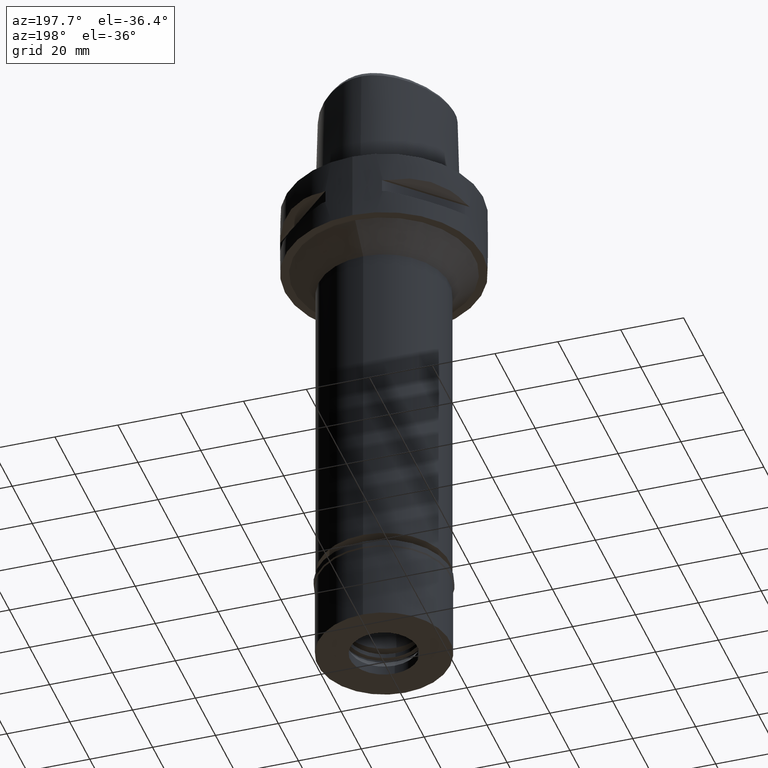
[diagram: clean part render]
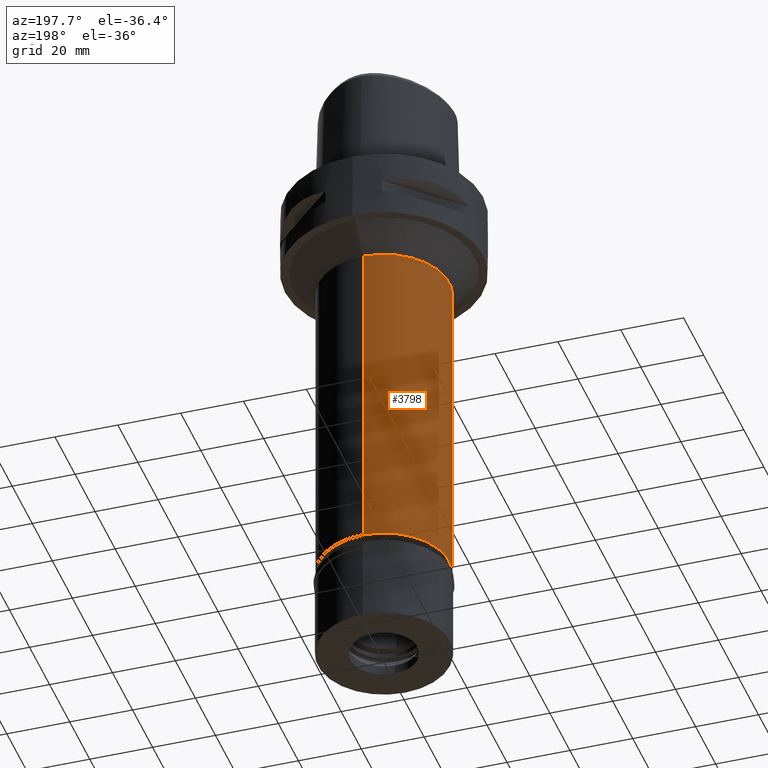
[diagram: same view with one face highlighted and labeled with its STEP entity id]
A machine part, auxiliary view. The second image highlights one B-rep face of the part: STEP entity #3798.
In plain terms, the highlighted cylindrical surface (partial cylindrical patch) has radius 20.8 mm, axis along (0, 0, -1).
Its self-contained STEP definition (entity closure, byte-faithful):
#33 = DIRECTION ( 'NONE',  ( 0.0000000000000000000, -1.000000000000000000, 0.0000000000000000000 ) ) ;
#204 = CARTESIAN_POINT ( 'NONE',  ( 0.0000000000000000000, -20.80000000000000071, -30.00000000000000000 ) ) ;
#286 = DIRECTION ( 'NONE',  ( 0.0000000000000000000, 0.0000000000000000000, -1.000000000000000000 ) ) ;
#317 = LINE ( 'NONE', #703, #1358 ) ;
#340 = ORIENTED_EDGE ( 'NONE', *, *, #1202, .F. ) ;
#434 = CARTESIAN_POINT ( 'NONE',  ( 0.0000000000000000000, 20.80000000000000071, -134.9000000000000057 ) ) ;
#489 = DIRECTION ( 'NONE',  ( 0.0000000000000000000, 0.0000000000000000000, 1.000000000000000000 ) ) ;
#703 = CARTESIAN_POINT ( 'NONE',  ( 0.0000000000000000000, 20.80000000000000071, -30.00000000000000000 ) ) ;
#1166 = LINE ( 'NONE', #2306, #4481 ) ;
#1173 = FACE_OUTER_BOUND ( 'NONE', #3628, .T. ) ;
#1202 = EDGE_CURVE ( 'NONE', #1779, #2718, #1166, .T. ) ;
#1290 = VERTEX_POINT ( 'NONE', #434 ) ;
#1355 = AXIS2_PLACEMENT_3D ( 'NONE', #3796, #2726, #33 ) ;
#1358 = VECTOR ( 'NONE', #2030, 1000.000000000000000 ) ;
#1493 = ORIENTED_EDGE ( 'NONE', *, *, #4241, .T. ) ;
#1779 = VERTEX_POINT ( 'NONE', #204 ) ;
#1827 = ORIENTED_EDGE ( 'NONE', *, *, #3071, .T. ) ;
#1995 = DIRECTION ( 'NONE',  ( 0.0000000000000000000, -1.000000000000000000, 0.0000000000000000000 ) ) ;
#2030 = DIRECTION ( 'NONE',  ( 0.0000000000000000000, 0.0000000000000000000, -1.000000000000000000 ) ) ;
#2228 = CIRCLE ( 'NONE', #2791, 20.80000000000000071 ) ;
#2306 = CARTESIAN_POINT ( 'NONE',  ( 0.0000000000000000000, -20.80000000000000071, -30.00000000000000000 ) ) ;
#2458 = CARTESIAN_POINT ( 'NONE',  ( 0.0000000000000000000, 0.0000000000000000000, -134.9000000000000057 ) ) ;
#2466 = CARTESIAN_POINT ( 'NONE',  ( 0.0000000000000000000, -20.80000000000000071, -134.9000000000000057 ) ) ;
#2603 = VERTEX_POINT ( 'NONE', #4239 ) ;
#2718 = VERTEX_POINT ( 'NONE', #2466 ) ;
#2726 = DIRECTION ( 'NONE',  ( 0.0000000000000000000, 0.0000000000000000000, -1.000000000000000000 ) ) ;
#2791 = AXIS2_PLACEMENT_3D ( 'NONE', #2458, #489, #4698 ) ;
#2800 = CARTESIAN_POINT ( 'NONE',  ( 0.0000000000000000000, 0.0000000000000000000, -30.00000000000000000 ) ) ;
#3071 = EDGE_CURVE ( 'NONE', #1290, #2718, #2228, .T. ) ;
#3628 = EDGE_LOOP ( 'NONE', ( #1827, #340, #3859, #1493 ) ) ;
#3796 = CARTESIAN_POINT ( 'NONE',  ( 0.0000000000000000000, 0.0000000000000000000, 7.700000000000000178 ) ) ;
#3798 = ADVANCED_FACE ( 'NONE', ( #1173 ), #3884, .T. ) ;
#3859 = ORIENTED_EDGE ( 'NONE', *, *, #3942, .T. ) ;
#3884 = CYLINDRICAL_SURFACE ( 'NONE', #1355, 20.80000000000000071 ) ;
#3934 = DIRECTION ( 'NONE',  ( 0.0000000000000000000, 0.0000000000000000000, -1.000000000000000000 ) ) ;
#3942 = EDGE_CURVE ( 'NONE', #1779, #2603, #4067, .T. ) ;
#4067 = CIRCLE ( 'NONE', #4306, 20.80000000000000071 ) ;
#4239 = CARTESIAN_POINT ( 'NONE',  ( 0.0000000000000000000, 20.80000000000000071, -30.00000000000000000 ) ) ;
#4241 = EDGE_CURVE ( 'NONE', #2603, #1290, #317, .T. ) ;
#4306 = AXIS2_PLACEMENT_3D ( 'NONE', #2800, #3934, #1995 ) ;
#4481 = VECTOR ( 'NONE', #286, 1000.000000000000000 ) ;
#4698 = DIRECTION ( 'NONE',  ( 0.0000000000000000000, 1.000000000000000000, 0.0000000000000000000 ) ) ;